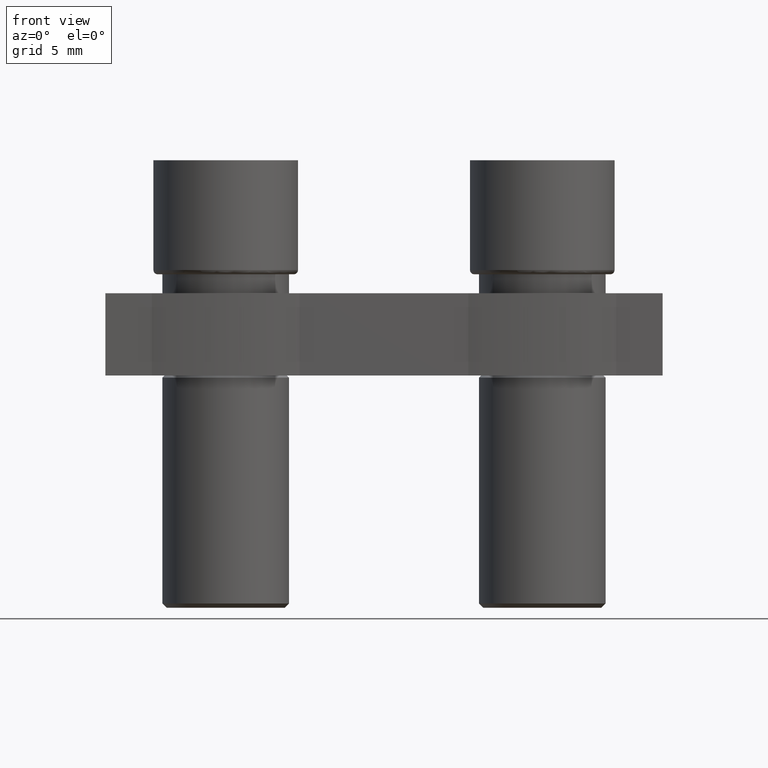
[diagram: clean part render]
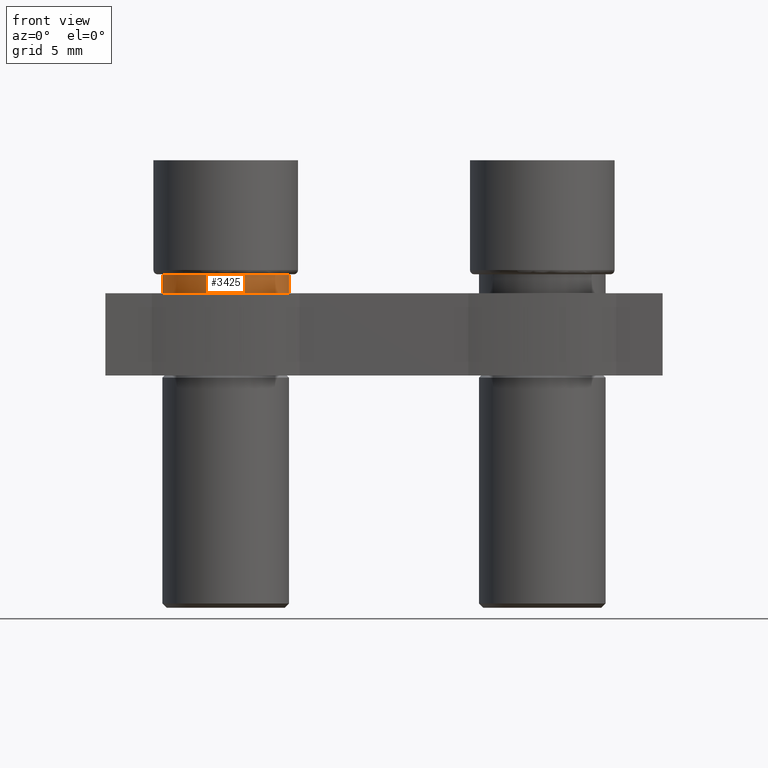
[diagram: same view with one face highlighted and labeled with its STEP entity id]
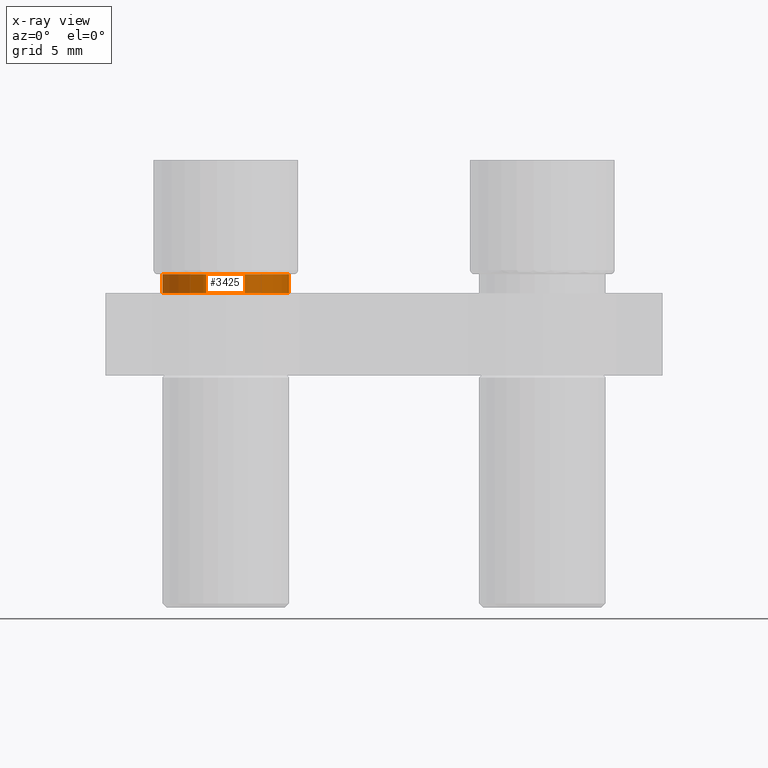
[diagram: x-ray of the same camera — body ghosted, the highlighted face saturated]
A machine part, front view. The second image highlights one B-rep face of the part: STEP entity #3425.
The next image is the same camera in x-ray: the body ghosted, the highlighted face saturated — about 0% of this face is hidden behind the body in this view.
In plain terms, the highlighted cylindrical surface (partial cylindrical patch) has radius 3 mm, axis along (-0, -0, -1).
Its self-contained STEP definition (entity closure, byte-faithful):
#1028 = LINE ( 'NONE', #1054, #2872 ) ;
#1047 = DIRECTION ( 'NONE',  ( -0.0000000000000000000, -0.0000000000000000000, -1.000000000000000000 ) ) ;
#1054 = CARTESIAN_POINT ( 'NONE',  ( 2.999999999999999100, 3.673940397442058900E-016, 0.0000000000000000000 ) ) ;
#1192 = CARTESIAN_POINT ( 'NONE',  ( -2.999999999999999100, 0.0000000000000000000, 0.0000000000000000000 ) ) ;
#1201 = DIRECTION ( 'NONE',  ( -1.000000000000000000, 0.0000000000000000000, 0.0000000000000000000 ) ) ;
#1212 = CARTESIAN_POINT ( 'NONE',  ( 0.0000000000000000000, 0.0000000000000000000, -0.9000000000000014700 ) ) ;
#1215 = DIRECTION ( 'NONE',  ( -0.0000000000000000000, -0.0000000000000000000, -1.000000000000000000 ) ) ;
#1222 = DIRECTION ( 'NONE',  ( 0.0000000000000000000, 0.0000000000000000000, 1.000000000000000000 ) ) ;
#1225 = LINE ( 'NONE', #1192, #2927 ) ;
#1455 = DIRECTION ( 'NONE',  ( -1.000000000000000000, 0.0000000000000000000, 0.0000000000000000000 ) ) ;
#1485 = CARTESIAN_POINT ( 'NONE',  ( 0.0000000000000000000, 0.0000000000000000000, 0.0000000000000000000 ) ) ;
#1493 = DIRECTION ( 'NONE',  ( -0.0000000000000000000, -0.0000000000000000000, -1.000000000000000000 ) ) ;
#1718 = FACE_OUTER_BOUND ( 'NONE', #1918, .T. ) ;
#1720 = DIRECTION ( 'NONE',  ( -1.000000000000000000, 0.0000000000000000000, 0.0000000000000000000 ) ) ;
#1730 = CARTESIAN_POINT ( 'NONE',  ( 0.0000000000000000000, 0.0000000000000000000, 0.0000000000000000000 ) ) ;
#1731 = CYLINDRICAL_SURFACE ( 'NONE', #3080, 2.999999999999999100 ) ;
#1749 = DIRECTION ( 'NONE',  ( -0.0000000000000000000, -0.0000000000000000000, -1.000000000000000000 ) ) ;
#1918 = EDGE_LOOP ( 'NONE', ( #2543, #2522, #2548, #2470 ) ) ;
#2031 = CARTESIAN_POINT ( 'NONE',  ( -2.999999999999999100, 0.0000000000000000000, -0.9000000000000014700 ) ) ;
#2042 = CARTESIAN_POINT ( 'NONE',  ( 2.999999999999999100, 3.673940397442058900E-016, 0.0000000000000000000 ) ) ;
#2065 = CARTESIAN_POINT ( 'NONE',  ( 2.999999999999999100, 3.673940397442058900E-016, -0.9000000000000014700 ) ) ;
#2089 = CARTESIAN_POINT ( 'NONE',  ( -2.999999999999999100, 0.0000000000000000000, 0.0000000000000000000 ) ) ;
#2193 = VERTEX_POINT ( 'NONE', #2089 ) ;
#2195 = VERTEX_POINT ( 'NONE', #2065 ) ;
#2208 = VERTEX_POINT ( 'NONE', #2042 ) ;
#2211 = VERTEX_POINT ( 'NONE', #2031 ) ;
#2470 = ORIENTED_EDGE ( 'NONE', *, *, #3303, .T. ) ;
#2522 = ORIENTED_EDGE ( 'NONE', *, *, #3381, .T. ) ;
#2543 = ORIENTED_EDGE ( 'NONE', *, *, #3255, .F. ) ;
#2548 = ORIENTED_EDGE ( 'NONE', *, *, #3306, .T. ) ;
#2872 = VECTOR ( 'NONE', #1047, 1000.000000000000000 ) ;
#2888 = AXIS2_PLACEMENT_3D ( 'NONE', #1212, #1222, #1201 ) ;
#2923 = CIRCLE ( 'NONE', #2888, 2.999999999999999100 ) ;
#2927 = VECTOR ( 'NONE', #1215, 1000.000000000000000 ) ;
#3017 = CIRCLE ( 'NONE', #3024, 2.999999999999999100 ) ;
#3024 = AXIS2_PLACEMENT_3D ( 'NONE', #1485, #1493, #1455 ) ;
#3080 = AXIS2_PLACEMENT_3D ( 'NONE', #1730, #1749, #1720 ) ;
#3255 = EDGE_CURVE ( 'NONE', #2208, #2195, #1028, .T. ) ;
#3303 = EDGE_CURVE ( 'NONE', #2211, #2195, #2923, .T. ) ;
#3306 = EDGE_CURVE ( 'NONE', #2193, #2211, #1225, .T. ) ;
#3381 = EDGE_CURVE ( 'NONE', #2208, #2193, #3017, .T. ) ;
#3425 = ADVANCED_FACE ( 'NONE', ( #1718 ), #1731, .T. ) ;